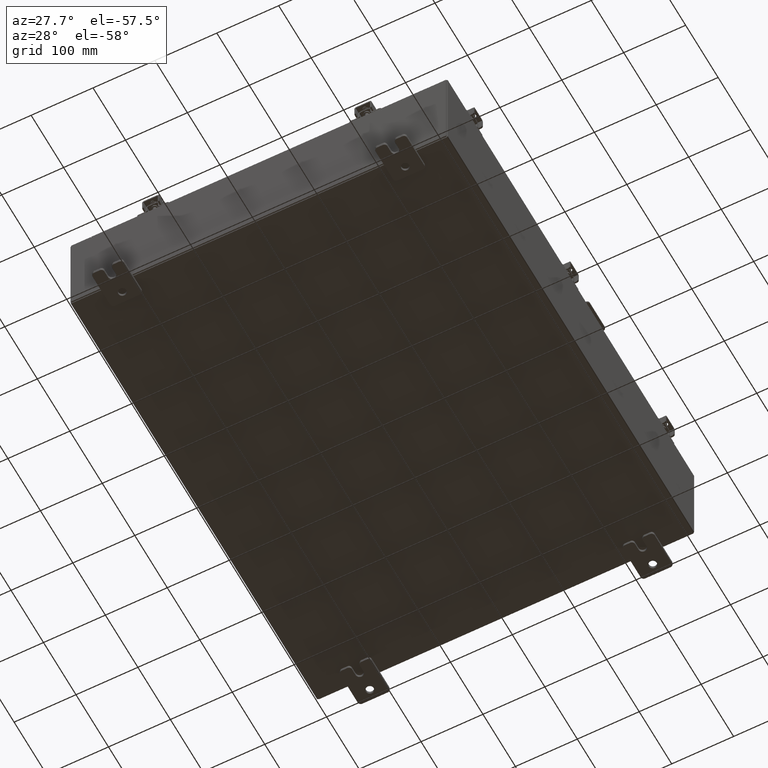
[diagram: clean part render]
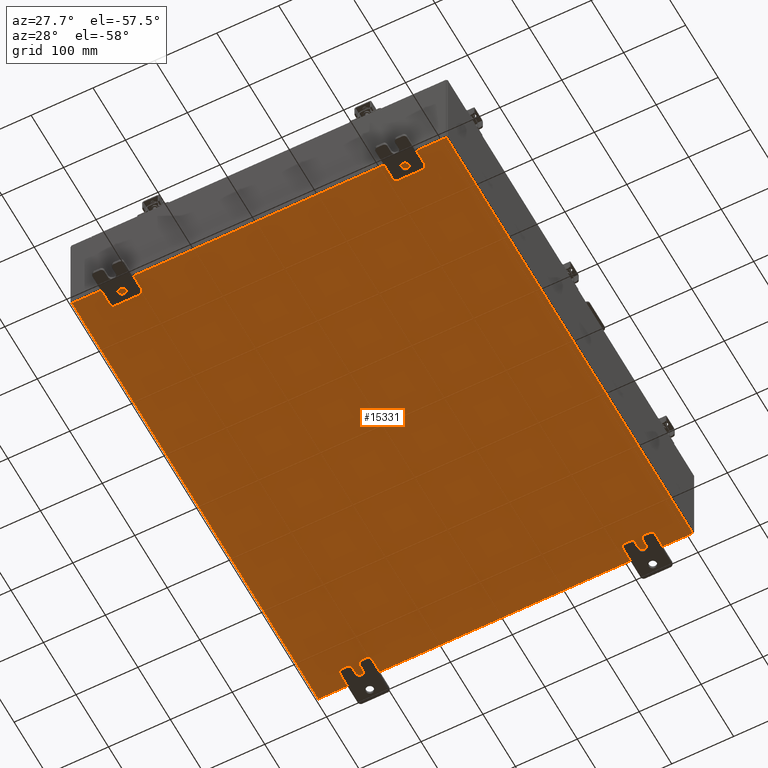
[diagram: same view with one face highlighted and labeled with its STEP entity id]
A machine part, auxiliary view. The second image highlights one B-rep face of the part: STEP entity #15331.
In plain terms, the highlighted planar face has unit normal (0, 0, -1).
Its self-contained STEP definition (entity closure, byte-faithful):
#873 = DIRECTION ( 'NONE',  ( -0.0000000000000000000, -1.000000000000000000, 8.208677865577646300E-017 ) ) ;
#955 = AXIS2_PLACEMENT_3D ( 'NONE', #24993, #16402, #36645 ) ;
#1679 = EDGE_CURVE ( 'NONE', #33844, #37356, #6235, .T. ) ;
#1696 = CARTESIAN_POINT ( 'NONE',  ( -11.91230000000000500, -14.92530000000000000, -0.07469999999999994700 ) ) ;
#2910 = VERTEX_POINT ( 'NONE', #13213 ) ;
#5024 = DIRECTION ( 'NONE',  ( 1.000000000000000000, 0.0000000000000000000, 0.0000000000000000000 ) ) ;
#6235 = LINE ( 'NONE', #1696, #13905 ) ;
#8031 = LINE ( 'NONE', #33004, #36936 ) ;
#9944 = LINE ( 'NONE', #26642, #22552 ) ;
#12105 = ORIENTED_EDGE ( 'NONE', *, *, #13233, .F. ) ;
#12947 = DIRECTION ( 'NONE',  ( -1.000000000000000000, -0.0000000000000000000, -0.0000000000000000000 ) ) ;
#13213 = CARTESIAN_POINT ( 'NONE',  ( 11.91229999999998800, -14.92530000000000000, -0.07470000000000000300 ) ) ;
#13233 = EDGE_CURVE ( 'NONE', #33844, #2910, #9944, .T. ) ;
#13905 = VECTOR ( 'NONE', #30083, 39.37007874015748100 ) ;
#14008 = CARTESIAN_POINT ( 'NONE',  ( 11.91229999999999700, 14.92530000000000000, -0.07470000000000226500 ) ) ;
#15331 = ADVANCED_FACE ( 'NONE', ( #21257 ), #22094, .T. ) ;
#16260 = VECTOR ( 'NONE', #873, 39.37007874015748100 ) ;
#16402 = DIRECTION ( 'NONE',  ( 0.0000000000000000000, 0.0000000000000000000, -1.000000000000000000 ) ) ;
#17419 = EDGE_CURVE ( 'NONE', #23244, #37356, #8031, .T. ) ;
#18169 = CARTESIAN_POINT ( 'NONE',  ( 11.91229999999999700, 14.92530000000000000, -0.07470000000000226500 ) ) ;
#21257 = FACE_OUTER_BOUND ( 'NONE', #22683, .T. ) ;
#22094 = PLANE ( 'NONE',  #955 ) ;
#22552 = VECTOR ( 'NONE', #5024, 39.37007874015748100 ) ;
#22683 = EDGE_LOOP ( 'NONE', ( #12105, #29822, #34623, #31890 ) ) ;
#23244 = VERTEX_POINT ( 'NONE', #14008 ) ;
#24550 = CARTESIAN_POINT ( 'NONE',  ( -11.91230000000000500, -14.92530000000000000, -0.07469999999999994700 ) ) ;
#24993 = CARTESIAN_POINT ( 'NONE',  ( 0.0000000000000000000, 0.0000000000000000000, -0.07470000000000000300 ) ) ;
#26642 = CARTESIAN_POINT ( 'NONE',  ( -12.00000000000000500, -14.92530000000000000, -0.07470000000000000300 ) ) ;
#27209 = CARTESIAN_POINT ( 'NONE',  ( -11.91230000000000500, 14.92530000000000000, -0.07470000000000000300 ) ) ;
#29822 = ORIENTED_EDGE ( 'NONE', *, *, #1679, .T. ) ;
#30083 = DIRECTION ( 'NONE',  ( -0.0000000000000000000, 1.000000000000000000, -0.0000000000000000000 ) ) ;
#31597 = LINE ( 'NONE', #18169, #16260 ) ;
#31890 = ORIENTED_EDGE ( 'NONE', *, *, #36168, .T. ) ;
#33004 = CARTESIAN_POINT ( 'NONE',  ( -12.00000000000000500, 14.92530000000000000, -0.07470000000000000300 ) ) ;
#33844 = VERTEX_POINT ( 'NONE', #24550 ) ;
#34623 = ORIENTED_EDGE ( 'NONE', *, *, #17419, .F. ) ;
#36168 = EDGE_CURVE ( 'NONE', #23244, #2910, #31597, .T. ) ;
#36645 = DIRECTION ( 'NONE',  ( -1.000000000000000000, 0.0000000000000000000, -0.0000000000000000000 ) ) ;
#36936 = VECTOR ( 'NONE', #12947, 39.37007874015748100 ) ;
#37356 = VERTEX_POINT ( 'NONE', #27209 ) ;